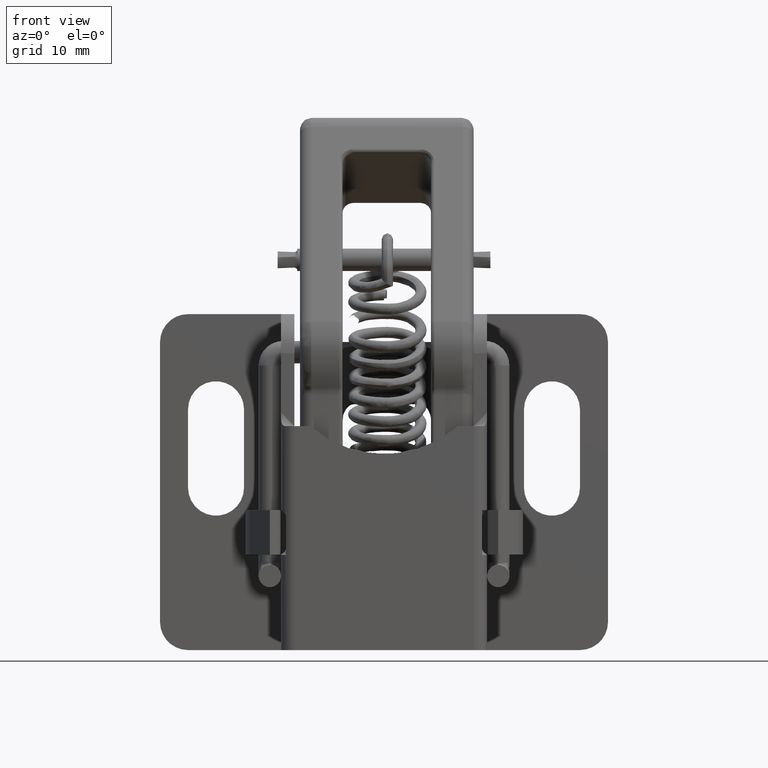
[diagram: clean part render]
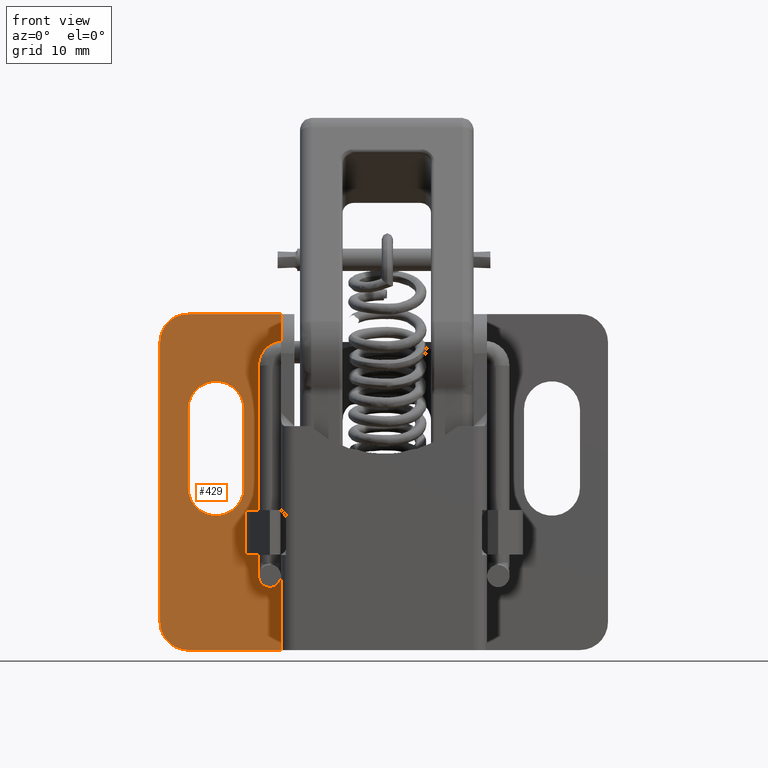
[diagram: same view with one face highlighted and labeled with its STEP entity id]
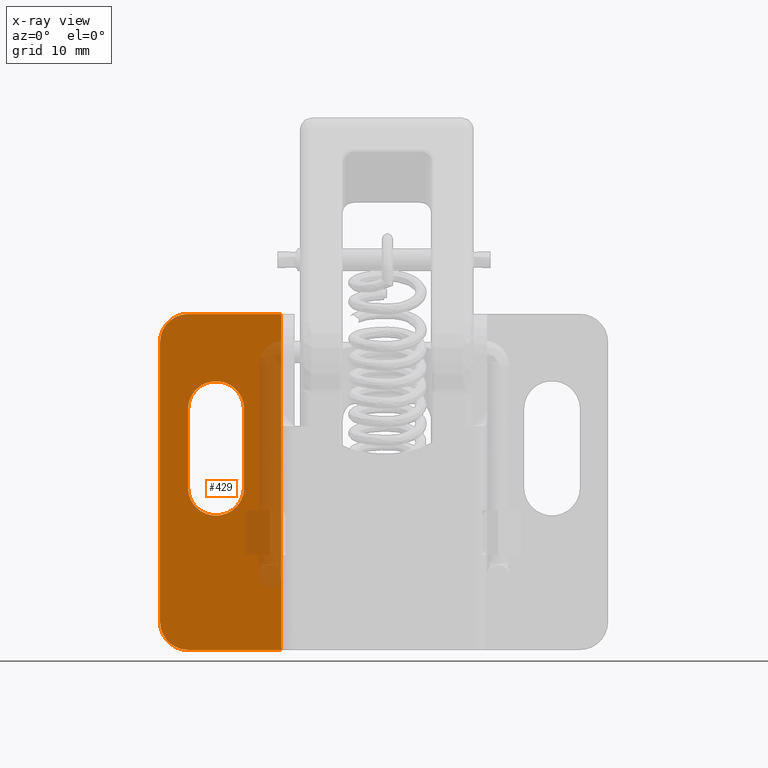
[diagram: x-ray of the same camera — body ghosted, the highlighted face saturated]
A machine part, front view. The second image highlights one B-rep face of the part: STEP entity #429.
The next image is the same camera in x-ray: the body ghosted, the highlighted face saturated — about 18% of this face is hidden behind the body in this view.
In plain terms, the highlighted planar face has unit normal (0, 1, 0).
Its self-contained STEP definition (entity closure, byte-faithful):
#429=ADVANCED_FACE('',(#1942,#1943),#1941,.F.);
#1941=PLANE('',#4970);
#1942=FACE_OUTER_BOUND('',#4971,.T.);
#1943=FACE_BOUND('',#4972,.T.);
#4967=CARTESIAN_POINT('',(-6.07999870000E+00,-1.20001200000E+00,-2.10000000000E+01));
#4968=DIRECTION('',(0.00000000000E+00,1.00000000000E+00,0.00000000000E+00));
#4969=DIRECTION('',(0.00000000000E+00,0.00000000000E+00,1.00000000000E+00));
#4970=AXIS2_PLACEMENT_3D('',#4967,#4968,#4969);
#4971=EDGE_LOOP('',(#11567,#11568,#11569,#11570,#11571,#11572));
#4972=EDGE_LOOP('',(#11573,#11574,#11575,#11576));
#11567=ORIENTED_EDGE('',*,*,#12826,.T.);
#11568=ORIENTED_EDGE('',*,*,#12743,.T.);
#11569=ORIENTED_EDGE('',*,*,#12700,.T.);
#11570=ORIENTED_EDGE('',*,*,#12713,.F.);
#11571=ORIENTED_EDGE('',*,*,#12831,.F.);
#11572=ORIENTED_EDGE('',*,*,#12747,.T.);
#11573=ORIENTED_EDGE('',*,*,#12832,.F.);
#11574=ORIENTED_EDGE('',*,*,#12833,.F.);
#11575=ORIENTED_EDGE('',*,*,#12834,.F.);
#11576=ORIENTED_EDGE('',*,*,#12835,.F.);
#12700=EDGE_CURVE('',#14837,#14830,#14838,.T.);
#12713=EDGE_CURVE('',#14919,#14830,#14926,.T.);
#12743=EDGE_CURVE('',#15128,#14837,#15129,.T.);
#12747=EDGE_CURVE('',#15156,#15149,#15157,.T.);
#12826=EDGE_CURVE('',#15149,#15128,#15666,.T.);
#12831=EDGE_CURVE('',#15156,#14919,#15696,.T.);
#12832=EDGE_CURVE('',#15702,#15703,#15704,.T.);
#12833=EDGE_CURVE('',#15710,#15702,#15711,.T.);
#12834=EDGE_CURVE('',#15717,#15710,#15718,.T.);
#12835=EDGE_CURVE('',#15703,#15717,#15724,.T.);
#14830=VERTEX_POINT('',#19556);
#14837=VERTEX_POINT('',#19560);
#14838=LINE('',#19561,#19562);
#14919=VERTEX_POINT('',#19610);
#14926=LINE('',#19614,#19615);
#15128=VERTEX_POINT('',#19737);
#15129=CIRCLE('',#19741,2.50000000000E+00);
#15149=VERTEX_POINT('',#19751);
#15156=VERTEX_POINT('',#19755);
#15157=CIRCLE('',#19759,2.50000000000E+00);
#15666=LINE('',#20069,#20070);
#15696=LINE('',#20084,#20085);
#15702=VERTEX_POINT('',#20087);
#15703=VERTEX_POINT('',#20088);
#15704=LINE('',#20089,#20090);
#15710=VERTEX_POINT('',#20092);
#15711=CIRCLE('',#20096,2.50000000000E+00);
#15717=VERTEX_POINT('',#20097);
#15718=LINE('',#20098,#20099);
#15724=CIRCLE('',#20104,2.50000000000E+00);
#19556=CARTESIAN_POINT('',(5.79998700000E+00,-1.20001200000E+00,-1.80000000000E+01));
#19560=CARTESIAN_POINT('',(-2.50000000000E+00,-1.20001200000E+00,-1.80000000000E+01));
#19561=CARTESIAN_POINT('',(-2.50000000000E+00,-1.20001200000E+00,-1.80000000000E+01));
#19562=VECTOR('',#19563,8.29998700000E+00);
#19563=DIRECTION('',(1.00000000000E+00,0.00000000000E+00,0.00000000000E+00));
#19610=CARTESIAN_POINT('',(5.79998700000E+00,-1.20001200000E+00,1.20000000000E+01));
#19614=CARTESIAN_POINT('',(5.79998700000E+00,-1.20001200000E+00,1.20000000000E+01));
#19615=VECTOR('',#19616,3.00000000000E+01);
#19616=DIRECTION('',(0.00000000000E+00,0.00000000000E+00,-1.00000000000E+00));
#19737=CARTESIAN_POINT('',(-5.00000000000E+00,-1.20001200000E+00,-1.55000000000E+01));
#19738=CARTESIAN_POINT('',(-2.50000000000E+00,-1.20001200000E+00,-1.55000000000E+01));
#19739=DIRECTION('',(0.00000000000E+00,-1.00000000000E+00,0.00000000000E+00));
#19740=DIRECTION('',(1.00000000000E+00,-0.00000000000E+00,-0.00000000000E+00));
#19741=AXIS2_PLACEMENT_3D('',#19738,#19739,#19740);
#19751=CARTESIAN_POINT('',(-5.00000000000E+00,-1.20001200000E+00,9.50000000000E+00));
#19755=CARTESIAN_POINT('',(-2.50000000000E+00,-1.20001200000E+00,1.20000000000E+01));
#19756=CARTESIAN_POINT('',(-2.50000000000E+00,-1.20001200000E+00,9.50000000000E+00));
#19757=DIRECTION('',(0.00000000000E+00,-1.00000000000E+00,0.00000000000E+00));
#19758=DIRECTION('',(-0.00000000000E+00,-0.00000000000E+00,-1.00000000000E+00));
#19759=AXIS2_PLACEMENT_3D('',#19756,#19757,#19758);
#20069=CARTESIAN_POINT('',(-5.00000000000E+00,-1.20001200000E+00,9.50000000000E+00));
#20070=VECTOR('',#20071,2.50000000000E+01);
#20071=DIRECTION('',(0.00000000000E+00,0.00000000000E+00,-1.00000000000E+00));
#20084=CARTESIAN_POINT('',(-2.50000000000E+00,-1.20001200000E+00,1.20000000000E+01));
#20085=VECTOR('',#20086,8.29998700000E+00);
#20086=DIRECTION('',(1.00000000000E+00,0.00000000000E+00,0.00000000000E+00));
#20087=CARTESIAN_POINT('',(-2.50000000000E+00,-1.20001200000E+00,3.50000000000E+00));
#20088=CARTESIAN_POINT('',(-2.50000000000E+00,-1.20001200000E+00,-3.50000000000E+00));
#20089=CARTESIAN_POINT('',(-2.50000000000E+00,-1.20001200000E+00,3.50000000000E+00));
#20090=VECTOR('',#20091,7.00000000000E+00);
#20091=DIRECTION('',(0.00000000000E+00,0.00000000000E+00,-1.00000000000E+00));
#20092=CARTESIAN_POINT('',(2.50000000000E+00,-1.20001200000E+00,3.50000000000E+00));
#20093=CARTESIAN_POINT('',(0.00000000000E+00,-1.20001200000E+00,3.50000000000E+00));
#20094=DIRECTION('',(0.00000000000E+00,-1.00000000000E+00,0.00000000000E+00));
#20095=DIRECTION('',(-1.00000000000E+00,-0.00000000000E+00,-0.00000000000E+00));
#20096=AXIS2_PLACEMENT_3D('',#20093,#20094,#20095);
#20097=CARTESIAN_POINT('',(2.50000000000E+00,-1.20001200000E+00,-3.49999956367E+00));
#20098=CARTESIAN_POINT('',(2.50000000000E+00,-1.20001200000E+00,-3.49999956367E+00));
#20099=VECTOR('',#20100,6.99999956367E+00);
#20100=DIRECTION('',(0.00000000000E+00,0.00000000000E+00,1.00000000000E+00));
#20101=CARTESIAN_POINT('',(0.00000000000E+00,-1.20001200000E+00,-3.50000000000E+00));
#20102=DIRECTION('',(0.00000000000E+00,-1.00000000000E+00,0.00000000000E+00));
#20103=DIRECTION('',(-1.00000000000E+00,0.00000000000E+00,1.22460635382E-16));
#20104=AXIS2_PLACEMENT_3D('',#20101,#20102,#20103);